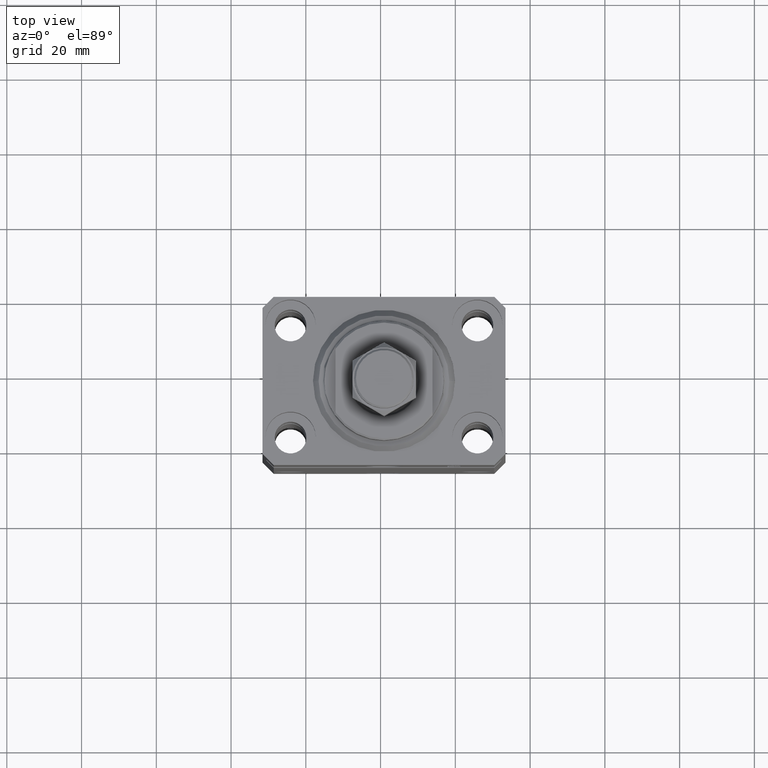
[diagram: clean part render]
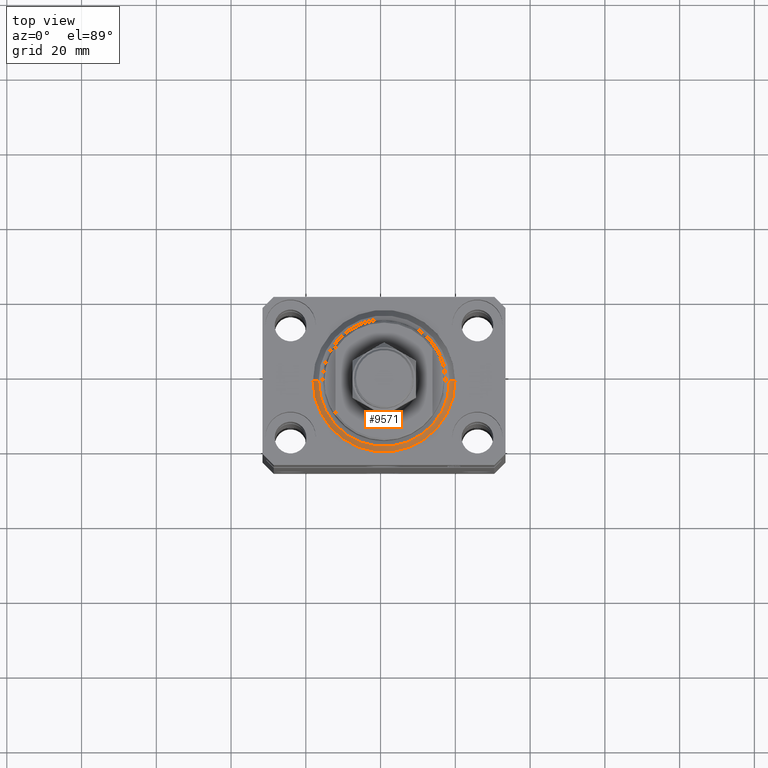
[diagram: same view with one face highlighted and labeled with its STEP entity id]
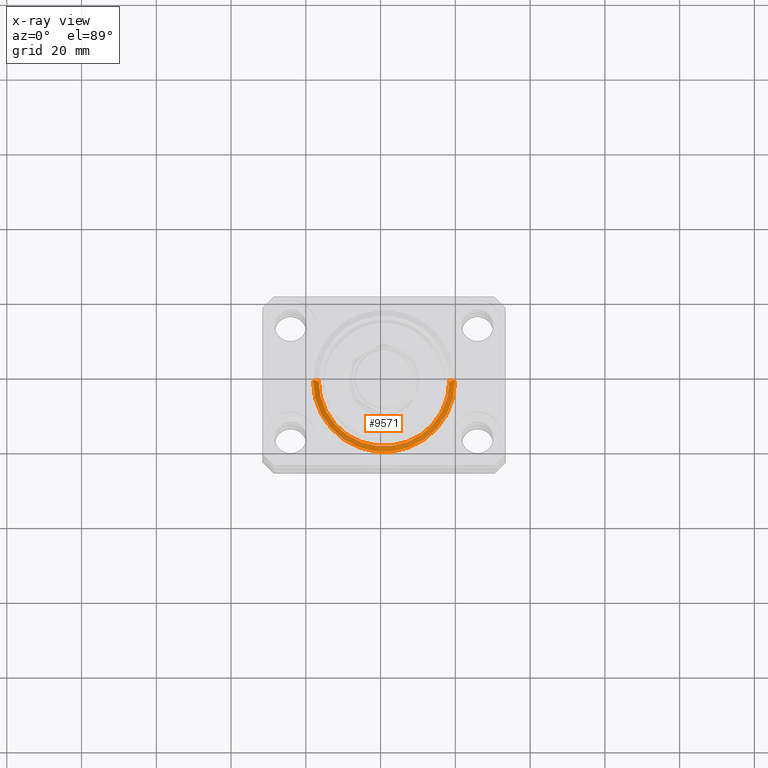
[diagram: x-ray of the same camera — body ghosted, the highlighted face saturated]
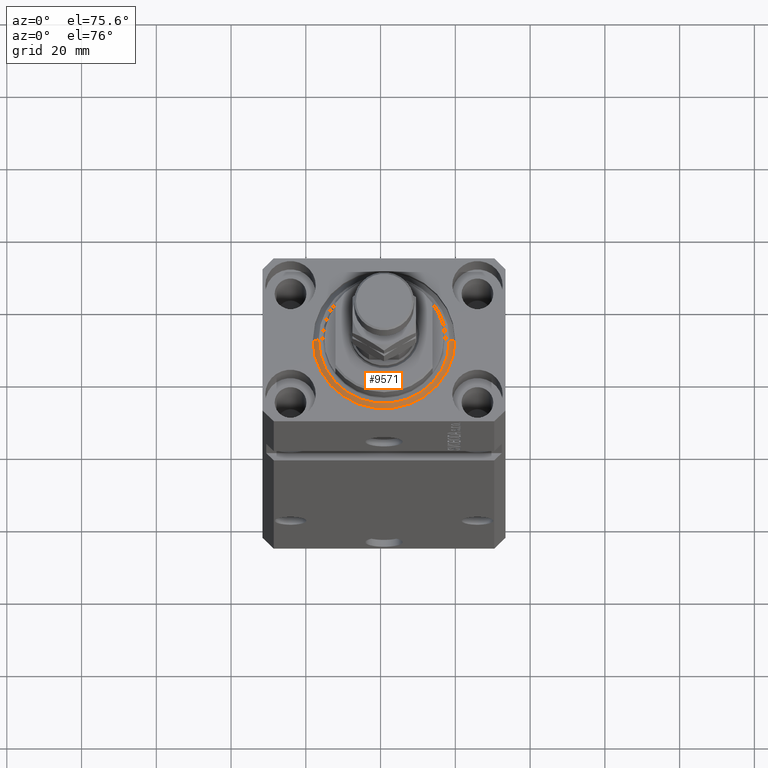
[diagram: same view with one face highlighted and labeled with its STEP entity id]
A machine part, top view. The second image highlights one B-rep face of the part: STEP entity #9571.
The next image is the same camera in x-ray: the body ghosted, the highlighted face saturated — about 0% of this face is hidden behind the body in this view.
A second angle (auxiliary view) of the same face is appended — the face is thin or edge-on in the first view.
In plain terms, the highlighted conical surface has half-angle 45 deg.
Its self-contained STEP definition (entity closure, byte-faithful):
#89 = ORIENTED_EDGE ( 'NONE', *, *, #14843, .T. ) ;
#256 = CIRCLE ( 'NONE', #42106, 19.00000000000000000 ) ;
#2720 = CARTESIAN_POINT ( 'NONE',  ( 0.000000000000000000, 0.000000000000000000, 0.000000000000000000 ) ) ;
#4614 = DIRECTION ( 'NONE',  ( -0.7071067811865483499, 8.659560562354943952E-17, 0.7071067811865467956 ) ) ;
#7206 = EDGE_CURVE ( 'NONE', #30767, #38135, #256, .T. ) ;
#7873 = CARTESIAN_POINT ( 'NONE',  ( -17.49999999999999289, 2.234980408443919215E-15, 0.000000000000000000 ) ) ;
#8479 = ORIENTED_EDGE ( 'NONE', *, *, #46734, .F. ) ;
#8857 = ORIENTED_EDGE ( 'NONE', *, *, #7206, .F. ) ;
#9571 = ADVANCED_FACE ( 'NONE', ( #43127 ), #37512, .T. ) ;
#10239 = AXIS2_PLACEMENT_3D ( 'NONE', #2720, #27269, #41827 ) ;
#10797 = LINE ( 'NONE', #46822, #23954 ) ;
#12401 = DIRECTION ( 'NONE',  ( 1.000000000000000000, 0.000000000000000000, 0.000000000000000000 ) ) ;
#13449 = VECTOR ( 'NONE', #4614, 1000.000000000000000 ) ;
#13557 = CARTESIAN_POINT ( 'NONE',  ( 0.000000000000000000, 0.000000000000000000, 1.500000000000004885 ) ) ;
#13885 = EDGE_CURVE ( 'NONE', #26402, #39607, #36118, .T. ) ;
#14843 = EDGE_CURVE ( 'NONE', #26402, #38135, #10797, .T. ) ;
#16688 = DIRECTION ( 'NONE',  ( -0.000000000000000000, -0.000000000000000000, 1.000000000000000000 ) ) ;
#18082 = DIRECTION ( 'NONE',  ( -0.000000000000000000, -0.000000000000000000, 1.000000000000000000 ) ) ;
#18796 = CARTESIAN_POINT ( 'NONE',  ( -19.00000000000000000, 0.000000000000000000, 1.500000000000004885 ) ) ;
#22279 = EDGE_LOOP ( 'NONE', ( #8479, #28334, #89, #8857 ) ) ;
#23954 = VECTOR ( 'NONE', #36556, 1000.000000000000000 ) ;
#24929 = CARTESIAN_POINT ( 'NONE',  ( 17.49999999999999289, 0.000000000000000000, 0.000000000000000000 ) ) ;
#25409 = AXIS2_PLACEMENT_3D ( 'NONE', #13557, #18082, #42658 ) ;
#26402 = VERTEX_POINT ( 'NONE', #24929 ) ;
#27269 = DIRECTION ( 'NONE',  ( -0.000000000000000000, -0.000000000000000000, -1.000000000000000000 ) ) ;
#28334 = ORIENTED_EDGE ( 'NONE', *, *, #13885, .F. ) ;
#29181 = LINE ( 'NONE', #43734, #13449 ) ;
#30767 = VERTEX_POINT ( 'NONE', #18796 ) ;
#34115 = CARTESIAN_POINT ( 'NONE',  ( 0.000000000000000000, 0.000000000000000000, 1.500000000000004885 ) ) ;
#36118 = CIRCLE ( 'NONE', #10239, 17.49999999999999289 ) ;
#36556 = DIRECTION ( 'NONE',  ( 0.7071067811865483499, 0.000000000000000000, 0.7071067811865467956 ) ) ;
#37181 = CARTESIAN_POINT ( 'NONE',  ( 19.00000000000000000, 2.326828918379970970E-15, 1.500000000000004885 ) ) ;
#37512 = CONICAL_SURFACE ( 'NONE', #25409, 19.00000000000000000, 0.7853981633974492782 ) ;
#38135 = VERTEX_POINT ( 'NONE', #37181 ) ;
#39607 = VERTEX_POINT ( 'NONE', #7873 ) ;
#41827 = DIRECTION ( 'NONE',  ( 1.000000000000000000, 0.000000000000000000, 0.000000000000000000 ) ) ;
#42106 = AXIS2_PLACEMENT_3D ( 'NONE', #34115, #16688, #12401 ) ;
#42658 = DIRECTION ( 'NONE',  ( 1.000000000000000000, 0.000000000000000000, 0.000000000000000000 ) ) ;
#43127 = FACE_OUTER_BOUND ( 'NONE', #22279, .T. ) ;
#43734 = CARTESIAN_POINT ( 'NONE',  ( -19.00000000000000000, 2.326828918379970970E-15, 1.500000000000004885 ) ) ;
#46734 = EDGE_CURVE ( 'NONE', #39607, #30767, #29181, .T. ) ;
#46822 = CARTESIAN_POINT ( 'NONE',  ( 19.00000000000000000, 0.000000000000000000, 1.500000000000004885 ) ) ;